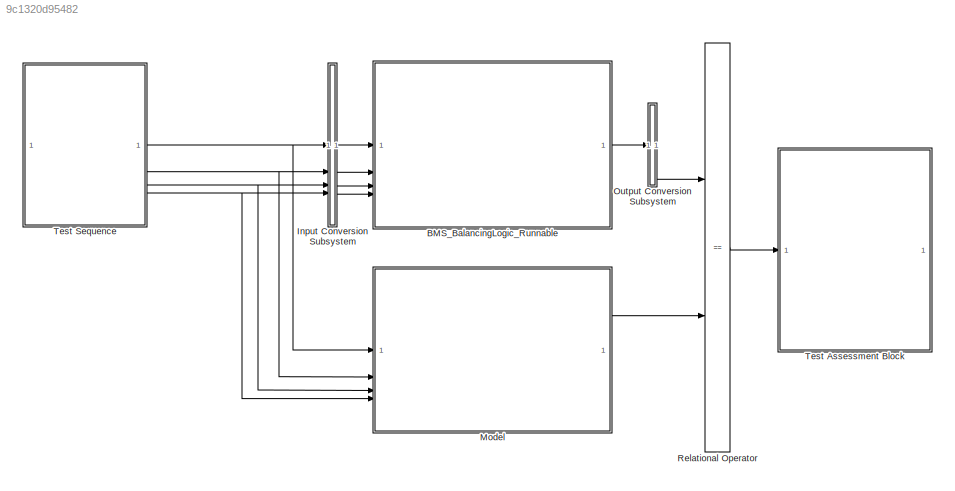
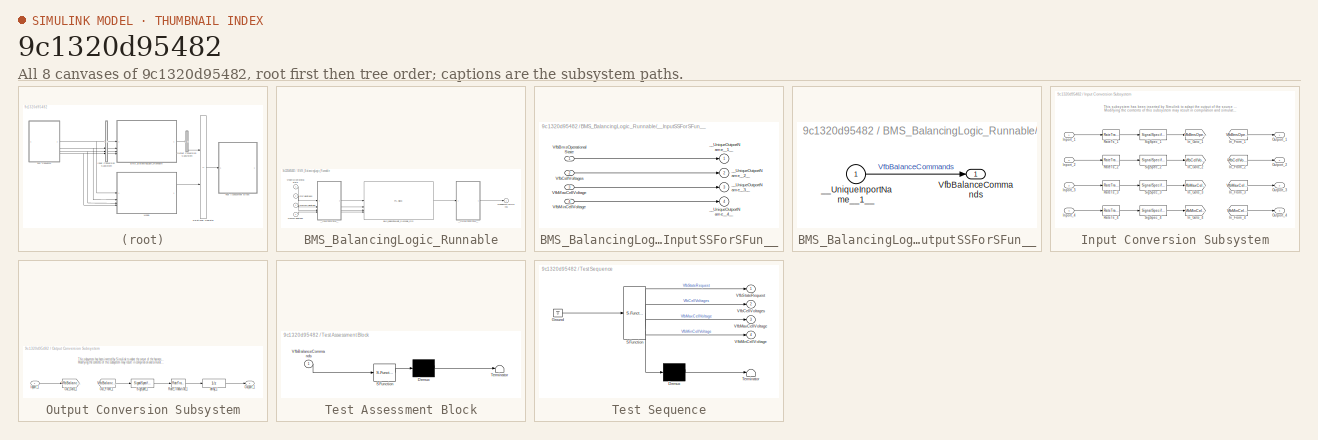
[diagram: thumbnail index - all 8 canvases of the model, root first then tree order]
MODEL slx_9c1320d95482
KIND model
CONFIG AbsTol = auto
CONFIG EnableMultiTasking = on
CONFIG FixedStep = auto
CONFIG MaxStep = auto
CONFIG MinStep = auto
CONFIG RelTol = 1e-3
CONFIG SampleTimeConstraint = Unconstrained
CONFIG SolverName = FixedStepDiscrete
CONFIG StartTime = 0.0
CONFIG StopTime = 10.0
WORKSPACE source: mxarray member
WORKSPACE BATT: object (value not decoded)
WORKSPACE Schedule: object (value not decoded)
BLOCK [SubSystem] BMS_BalancingLogic_Runnable
  DialogController = pil_create_dialog
  LoadFcn = try\n   if ~strcmp(rtw.pil.getPILVersion, '9.13 (R2022b)_15')\n      set_param(gcb, 'DialogController', '');\n      set_param(gcb, 'DialogControllerArgs', '');\n   end\ncatch e\n      set_param(gcb, 'DialogController', '');\n      set_param(gcb, 'DialogControllerArgs', '');\nend
  Tag = __SL_testing_harness_stub_
BLOCK [Reference] BMS_BalancingLogic_Runnable/BMS_BalancingLogic_Runnable_sfcn  REF=pil_lib/PIL Block
  SourceBlock = pil_lib/PIL Block
  SourceType = XILBlock
BLOCK [Outport] BMS_BalancingLogic_Runnable/VfbBalanceCommands
BLOCK [Inport] BMS_BalancingLogic_Runnable/VfbBmsOperationalState
  OutDataTypeStr = Enum: BMS_State_Enum
  PortDimensions = 1
BLOCK [Inport] BMS_BalancingLogic_Runnable/VfbCellVoltages
  Port = 2
BLOCK [Inport] BMS_BalancingLogic_Runnable/VfbMaxCellVoltage
  Port = 3
BLOCK [Inport] BMS_BalancingLogic_Runnable/VfbMinCellVoltage
  Port = 4
BLOCK [SubSystem] BMS_BalancingLogic_Runnable/__InputSSForSFun__
  PermitHierarchicalResolution = ExplicitOnly
BLOCK [Inport] BMS_BalancingLogic_Runnable/__InputSSForSFun__/VfbBmsOperationalState
  OutDataTypeStr = Enum: BMS_State_Enum
  PortDimensions = 1
BLOCK [Inport] BMS_BalancingLogic_Runnable/__InputSSForSFun__/VfbCellVoltages
  Port = 2
BLOCK [Inport] BMS_BalancingLogic_Runnable/__InputSSForSFun__/VfbMaxCellVoltage
  Port = 3
BLOCK [Inport] BMS_BalancingLogic_Runnable/__InputSSForSFun__/VfbMinCellVoltage
  Port = 4
BLOCK [Outport] BMS_BalancingLogic_Runnable/__InputSSForSFun__/__UniqueOutportName__1__
BLOCK [Outport] BMS_BalancingLogic_Runnable/__InputSSForSFun__/__UniqueOutportName__2__
  Port = 2
BLOCK [Outport] BMS_BalancingLogic_Runnable/__InputSSForSFun__/__UniqueOutportName__3__
  Port = 3
BLOCK [Outport] BMS_BalancingLogic_Runnable/__InputSSForSFun__/__UniqueOutportName__4__
  Port = 4
BLOCK [SubSystem] BMS_BalancingLogic_Runnable/__OutputSSForSFun__
  PermitHierarchicalResolution = ExplicitOnly
BLOCK [Outport] BMS_BalancingLogic_Runnable/__OutputSSForSFun__/VfbBalanceCommands
BLOCK [Inport] BMS_BalancingLogic_Runnable/__OutputSSForSFun__/__UniqueInportName__1__
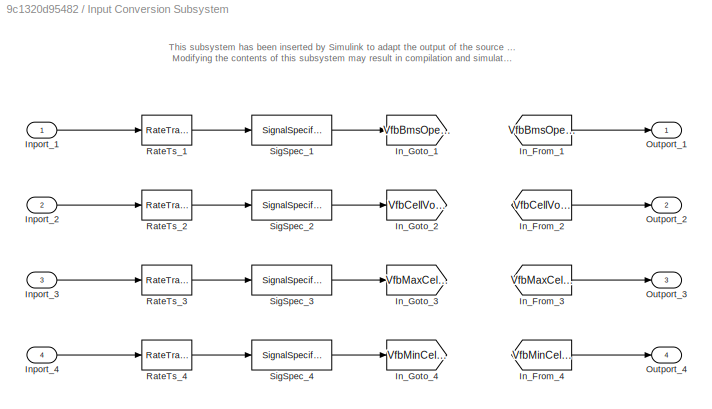
BLOCK [SubSystem] Input Conversion Subsystem
  AttributesFormatString = %<Description>
  Description = Signal spec.\nand routing
  Permissions = ReadOnly
  PermitHierarchicalResolution = ExplicitOnly
  Tag = __SLT_ICS__
  TreatAsGroupedWhenPropagatingVariantConditions = off
  UserDataPersistent = on
BLOCK [From] Input Conversion Subsystem/In_From_1
  GotoTag = VfbBmsOperationalState_A
  TagVisibility = global
BLOCK [From] Input Conversion Subsystem/In_From_2
  GotoTag = VfbCellVoltages_A
  TagVisibility = global
BLOCK [From] Input Conversion Subsystem/In_From_3
  GotoTag = VfbMaxCellVoltage_A
  TagVisibility = global
BLOCK [From] Input Conversion Subsystem/In_From_4
  GotoTag = VfbMinCellVoltage_A
  TagVisibility = global
BLOCK [Goto] Input Conversion Subsystem/In_Goto_1
  GotoTag = VfbBmsOperationalState_A
  TagVisibility = global
BLOCK [Goto] Input Conversion Subsystem/In_Goto_2
  GotoTag = VfbCellVoltages_A
  TagVisibility = global
BLOCK [Goto] Input Conversion Subsystem/In_Goto_3
  GotoTag = VfbMaxCellVoltage_A
  TagVisibility = global
BLOCK [Goto] Input Conversion Subsystem/In_Goto_4
  GotoTag = VfbMinCellVoltage_A
  TagVisibility = global
BLOCK [Inport] Input Conversion Subsystem/Inport_1
BLOCK [Inport] Input Conversion Subsystem/Inport_2
  Port = 2
BLOCK [Inport] Input Conversion Subsystem/Inport_3
  Port = 3
BLOCK [Inport] Input Conversion Subsystem/Inport_4
  Port = 4
BLOCK [Outport] Input Conversion Subsystem/Outport_1
BLOCK [Outport] Input Conversion Subsystem/Outport_2
  Port = 2
BLOCK [Outport] Input Conversion Subsystem/Outport_3
  Port = 3
BLOCK [Outport] Input Conversion Subsystem/Outport_4
  Port = 4
BLOCK [RateTransition] Input Conversion Subsystem/RateTs_1
  InitialCondition = BMS_State_Enum.BMS_Standby
  OutPortSampleTime = 0.25
BLOCK [RateTransition] Input Conversion Subsystem/RateTs_2
  OutPortSampleTime = 0.25
BLOCK [RateTransition] Input Conversion Subsystem/RateTs_3
  OutPortSampleTime = 0.25
BLOCK [RateTransition] Input Conversion Subsystem/RateTs_4
  OutPortSampleTime = 0.25
BLOCK [SignalSpecification] Input Conversion Subsystem/SigSpec_1
  Dimensions = [1]
  OutDataTypeStr = Enum: BMS_State_Enum
  SampleTime = 0.25
  SignalType = real
  VarSizeSig = No
BLOCK [SignalSpecification] Input Conversion Subsystem/SigSpec_2
  Dimensions = [3]
  OutDataTypeStr = single
  SampleTime = 0.25
  SignalType = real
  Unit = V
  VarSizeSig = No
BLOCK [SignalSpecification] Input Conversion Subsystem/SigSpec_3
  Dimensions = [1]
  OutDataTypeStr = single
  SampleTime = 0.25
  SignalType = real
  Unit = V
  VarSizeSig = No
BLOCK [SignalSpecification] Input Conversion Subsystem/SigSpec_4
  Dimensions = [1]
  OutDataTypeStr = single
  SampleTime = 0.25
  SignalType = real
  Unit = V
  VarSizeSig = No
BLOCK [ModelReference] Model
  ModelNameDialog = BMS_BalancingLogic_COM.slx
  ModelReferenceVersion = 1.53
BLOCK [SubSystem] Output Conversion Subsystem
  AttributesFormatString = %<Description>
  Description = Signal spec.\nand routing
  Permissions = ReadOnly
  PermitHierarchicalResolution = ExplicitOnly
  Tag = __SLT_OCS__
  TreatAsGroupedWhenPropagatingVariantConditions = off
  UserDataPersistent = on
BLOCK [Inport] Output Conversion Subsystem/Inport_1
BLOCK [From] Output Conversion Subsystem/Out_From_1
  GotoTag = VfbBalanceCommands_A
  TagVisibility = global
BLOCK [Goto] Output Conversion Subsystem/Out_Goto_1
  GotoTag = VfbBalanceCommands_A
  TagVisibility = global
BLOCK [Outport] Output Conversion Subsystem/Outport_1
BLOCK [RateTransition] Output Conversion Subsystem/Rate_Transition_1
  OutPortSampleTimeOpt = Inherit
BLOCK [SignalSpecification] Output Conversion Subsystem/SigSpec_1
  Dimensions = [3]
  OutDataTypeStr = boolean
  SampleTime = 0.25
  SignalType = real
  VarSizeSig = No
BLOCK [UnitDelay] Output Conversion Subsystem/delay_1
  SampleTime = -1
BLOCK [RelationalOperator] Relational Operator
  InputSameDT = off
  Operator = ==
  OutDataTypeStr = boolean
  RndMeth = Simplest
BLOCK [SubSystem] Test Assessment Block
  ErrorFcn = Stateflow.Translate.translate
  PermitHierarchicalResolution = ExplicitOnly
  SFBlockType = Test Sequence
  ShowPortLabels = none
  Tag = __SLT_ASMT__
  TreatAsAtomicUnit = on
BLOCK [Demux] Test Assessment Block/ Demux 
  Outputs = 1
BLOCK [S-Function] Test Assessment Block/ SFunction 
  EnableBusSupport = on
  FunctionName = sf_sfun
  PortCounts = [1 1]
  SFcnIsStateOwnerBlock = off
  SFunctionDeploymentMode = off
  Tag = Stateflow S-Function 7
BLOCK [Terminator] Test Assessment Block/ Terminator 
BLOCK [Inport] Test Assessment Block/VfbBalanceCommands
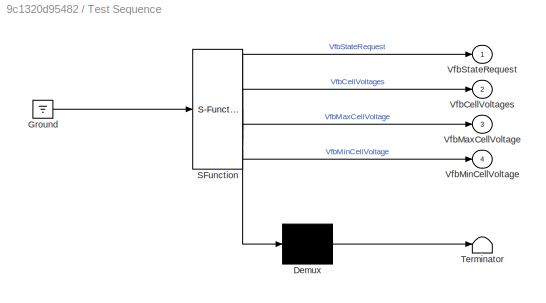
BLOCK [SubSystem] Test Sequence
  ErrorFcn = Stateflow.Translate.translate
  PermitHierarchicalResolution = ExplicitOnly
  SFBlockType = Test Sequence
  ShowPortLabels = none
  TreatAsAtomicUnit = on
BLOCK [Demux] Test Sequence/ Demux 
  Outputs = 1
BLOCK [Ground] Test Sequence/ Ground 
BLOCK [S-Function] Test Sequence/ SFunction 
  EnableBusSupport = on
  FunctionName = sf_sfun
  Parameters = 1
  PortCounts = [1 5]
  SFcnIsStateOwnerBlock = off
  SFunctionDeploymentMode = off
  Tag = Stateflow S-Function 4
BLOCK [Terminator] Test Sequence/ Terminator 
BLOCK [Outport] Test Sequence/VfbCellVoltages
  Port = 2
BLOCK [Outport] Test Sequence/VfbMaxCellVoltage
  Port = 3
BLOCK [Outport] Test Sequence/VfbMinCellVoltage
  Port = 4
BLOCK [Outport] Test Sequence/VfbStateRequest
ANNOTATION Input Conversion Subsystem: This subsystem has been inserted by Simulink to adapt the output of the source blocks to the interface required by the harnessed component. Modifying the contents of this subsystem may result in compilation and simulation failure.
ANNOTATION Output Conversion Subsystem: This subsystem has been inserted by Simulink to adapt the output of the harnessed component to the interface required by the sink blocks. Modifying the contents of this subsystem may result in compilation and simulation failure.
LINE BMS_BalancingLogic_Runnable/__InputSSForSFun__/VfbBmsOperationalState:1 -> BMS_BalancingLogic_Runnable/__InputSSForSFun__/__UniqueOutportName__1__:1
LINE BMS_BalancingLogic_Runnable/__InputSSForSFun__/VfbCellVoltages:1 -> BMS_BalancingLogic_Runnable/__InputSSForSFun__/__UniqueOutportName__2__:1
LINE BMS_BalancingLogic_Runnable/__InputSSForSFun__/VfbMaxCellVoltage:1 -> BMS_BalancingLogic_Runnable/__InputSSForSFun__/__UniqueOutportName__3__:1
LINE BMS_BalancingLogic_Runnable/__InputSSForSFun__/VfbMinCellVoltage:1 -> BMS_BalancingLogic_Runnable/__InputSSForSFun__/__UniqueOutportName__4__:1
LINE BMS_BalancingLogic_Runnable/__OutputSSForSFun__/__UniqueInportName__1__:1 -> BMS_BalancingLogic_Runnable/__OutputSSForSFun__/VfbBalanceCommands:1
LINE BMS_BalancingLogic_Runnable:1 -> Output Conversion Subsystem:1
LINE Input Conversion Subsystem/In_From_1:1 -> Input Conversion Subsystem/Outport_1:1
LINE Input Conversion Subsystem/In_From_2:1 -> Input Conversion Subsystem/Outport_2:1
LINE Input Conversion Subsystem/In_From_3:1 -> Input Conversion Subsystem/Outport_3:1
LINE Input Conversion Subsystem/In_From_4:1 -> Input Conversion Subsystem/Outport_4:1
LINE Input Conversion Subsystem/Inport_1:1 -> Input Conversion Subsystem/RateTs_1:1
LINE Input Conversion Subsystem/Inport_2:1 -> Input Conversion Subsystem/RateTs_2:1
LINE Input Conversion Subsystem/Inport_3:1 -> Input Conversion Subsystem/RateTs_3:1
LINE Input Conversion Subsystem/Inport_4:1 -> Input Conversion Subsystem/RateTs_4:1
LINE Input Conversion Subsystem/RateTs_1:1 -> Input Conversion Subsystem/SigSpec_1:1
LINE Input Conversion Subsystem/RateTs_2:1 -> Input Conversion Subsystem/SigSpec_2:1
LINE Input Conversion Subsystem/RateTs_3:1 -> Input Conversion Subsystem/SigSpec_3:1
LINE Input Conversion Subsystem/RateTs_4:1 -> Input Conversion Subsystem/SigSpec_4:1
LINE Input Conversion Subsystem/SigSpec_1:1 -> Input Conversion Subsystem/In_Goto_1:1
LINE Input Conversion Subsystem/SigSpec_2:1 -> Input Conversion Subsystem/In_Goto_2:1
LINE Input Conversion Subsystem/SigSpec_3:1 -> Input Conversion Subsystem/In_Goto_3:1
LINE Input Conversion Subsystem/SigSpec_4:1 -> Input Conversion Subsystem/In_Goto_4:1
LINE Input Conversion Subsystem:1 -> BMS_BalancingLogic_Runnable:1
LINE Input Conversion Subsystem:2 -> BMS_BalancingLogic_Runnable:2
LINE Input Conversion Subsystem:3 -> BMS_BalancingLogic_Runnable:3
LINE Input Conversion Subsystem:4 -> BMS_BalancingLogic_Runnable:4
LINE Model:1 -> Relational Operator:2
LINE Output Conversion Subsystem/Inport_1:1 -> Output Conversion Subsystem/Out_Goto_1:1
LINE Output Conversion Subsystem/Out_From_1:1 -> Output Conversion Subsystem/SigSpec_1:1
LINE Output Conversion Subsystem/Rate_Transition_1:1 -> Output Conversion Subsystem/delay_1:1
LINE Output Conversion Subsystem/SigSpec_1:1 -> Output Conversion Subsystem/Rate_Transition_1:1
LINE Output Conversion Subsystem/delay_1:1 -> Output Conversion Subsystem/Outport_1:1
LINE Output Conversion Subsystem:1 -> Relational Operator:1
LINE Relational Operator:1 -> Test Assessment Block:1
NET Test Sequence:1 -> Input Conversion Subsystem:1, Model:1
NET Test Sequence:2 -> Input Conversion Subsystem:2, Model:2
NET Test Sequence:3 -> Input Conversion Subsystem:3, Model:3
NET Test Sequence:4 -> Input Conversion Subsystem:4, Model:4
note: NET lines group one-source signal fan-out (src -> all destinations, sorted); 1:1 wires keep LINE
CHART Test Sequence states=21 transitions=22
  STATE_LABEL 'Dynamic'
  STATE_LABEL 'Run\n\nVfbStateRequest = BMS_State_Enum.BMS_Balancing;\nVfbCellVoltages = single(3.7 * ones(3, 1));\nVfbMaxCellVoltage = single(3.7);\nVfbMinCellVoltage  = single(3.7);'
  STATE_LABEL "S1\n\nVfbStateRequest = BMS_State_Enum.BMS_Balancing;\nVfbCellVoltages = single([3.725, 3.700, 3.700]');\nVfbMaxCellVoltage = single(3.725);\nVfbMinCellVoltage  = single(3.700);"
  STATE_LABEL 'S2\n\nVfbStateRequest = BMS_State_Enum.BMS_Balancing;\nVfbCellVoltages = single(3.7 * ones(3, 1));\nVfbMaxCellVoltage = single(3.7);\nVfbMinCellVoltage  = single(3.7);'
  STATE_LABEL "S3\n\nVfbStateRequest = BMS_State_Enum.BMS_Balancing;\nVfbCellVoltages = single([3.725, 3.700, 3.700]');\nVfbMaxCellVoltage = single(3.725);\nVfbMinCellVoltage  = single(3.700);"
  STATE_LABEL "S4\n\nVfbStateRequest = BMS_State_Enum.BMS_Driving;\nVfbCellVoltages = single([3.725, 3.700, 3.700]');\nVfbMaxCellVoltage = single(3.725);\nVfbMinCellVoltage  = single(3.700);"
  STATE_LABEL "S5\n\nVfbStateRequest = BMS_State_Enum.BMS_Balancing;\nVfbCellVoltages = single([3.725, 3.700, 3.700]');\nVfbMaxCellVoltage = single(3.725);\nVfbMinCellVoltage  = single(3.700);"
  STATE_LABEL "S6\n\nVfbStateRequest = BMS_State_Enum.BMS_Fault;\nVfbCellVoltages = single([3.725, 3.700, 3.700]');\nVfbMaxCellVoltage = single(3.725);\nVfbMinCellVoltage  = single(3.700);"
  STATE_LABEL "S7\n\nVfbStateRequest = BMS_State_Enum.BMS_Standby;\nVfbCellVoltages = single([3.725, 3.700, 3.700]');\nVfbMaxCellVoltage = single(3.725);\nVfbMinCellVoltage  = single(3.700);"
  STATE_LABEL "S8\n\nVfbStateRequest = BMS_State_Enum.BMS_Balancing;\nVfbCellVoltages = single([3.720, 3.700, 3.700]');\nVfbMaxCellVoltage = single(3.720);\nVfbMinCellVoltage  = single(3.700);"
  STATE_LABEL "S9\n\nVfbStateRequest = BMS_State_Enum.BMS_Standby;\nVfbCellVoltages = single([3.725, 3.700, 3.700]');\nVfbMaxCellVoltage = single(3.725);\nVfbMinCellVoltage  = single(3.700);"
  STATE_LABEL "S10\n\nVfbStateRequest = BMS_State_Enum.BMS_Standby;\nVfbCellVoltages = single([3.710, 3.700, 3.700]');\nVfbMaxCellVoltage = single(3.710);\nVfbMinCellVoltage  = single(3.700);"
  STATE_LABEL 'S11\n\nVfbStateRequest = BMS_State_Enum.BMS_Standby;\nVfbCellVoltages = single(3.7 * ones(3, 1));\nVfbMaxCellVoltage = single(3.7);\nVfbMinCellVoltage  = single(3.7);'
  STATE_LABEL 'S12\n\n'
  STATE_LABEL "end\n\ncoder.extrinsic('set_param');\nset_param(bdroot, 'SimulationCommand', 'stop');"
  STATE_LABEL '[\nafter(1, sec)\n]'
  STATE_LABEL '[\nafter(4.25, sec)\n]'
  STATE_LABEL '[\nafter(9.75, sec)\n]'
  STATE_LABEL '[\nafter(1, sec)\n]'
  STATE_LABEL '[\nafter(1, sec)\n]'
  STATE_LABEL '[\nafter(5, sec)\n]'
  STATE_LABEL '[\nafter(1, sec)\n]'
  STATE_LABEL '[\nafter(4.75, sec)\n]'
  STATE_LABEL '[\nafter(1.25, sec)\n]'
  STATE_LABEL '[\nafter(10, sec)\n]'
  STATE_LABEL '[\nafter(5, sec)\n]'
  STATE_LABEL '[\nafter(10, sec)\n]'
  STATE_LABEL '[\nafter(5, sec)\n]'
  STATE_LABEL 'Run\n\nVfbStateRequest = BMS_State_Enum.BMS_Balancing;\nVfbCellVoltages = single(3.7 * ones(3, 1));\nVfbMaxCellVoltage = single(3.7);\nVfbMinCellVoltage  = single(3.7);'
  STATE_LABEL "S1\n\nVfbStateRequest = BMS_State_Enum.BMS_Balancing;\nVfbCellVoltages = single([3.725, 3.700, 3.700]');\nVfbMaxCellVoltage = single(3.725);\nVfbMinCellVoltage  = single(3.700);"
  STATE_LABEL 'S2\n\nVfbStateRequest = BMS_State_Enum.BMS_Balancing;\nVfbCellVoltages = single(3.7 * ones(3, 1));\nVfbMaxCellVoltage = single(3.7);\nVfbMinCellVoltage  = single(3.7);'
  STATE_LABEL "S3\n\nVfbStateRequest = BMS_State_Enum.BMS_Balancing;\nVfbCellVoltages = single([3.725, 3.700, 3.700]');\nVfbMaxCellVoltage = single(3.725);\nVfbMinCellVoltage  = single(3.700);"
  STATE_LABEL "S4\n\nVfbStateRequest = BMS_State_Enum.BMS_Driving;\nVfbCellVoltages = single([3.725, 3.700, 3.700]');\nVfbMaxCellVoltage = single(3.725);\nVfbMinCellVoltage  = single(3.700);"
  STATE_LABEL "S5\n\nVfbStateRequest = BMS_State_Enum.BMS_Balancing;\nVfbCellVoltages = single([3.725, 3.700, 3.700]');\nVfbMaxCellVoltage = single(3.725);\nVfbMinCellVoltage  = single(3.700);"
  STATE_LABEL "S6\n\nVfbStateRequest = BMS_State_Enum.BMS_Fault;\nVfbCellVoltages = single([3.725, 3.700, 3.700]');\nVfbMaxCellVoltage = single(3.725);\nVfbMinCellVoltage  = single(3.700);"
  STATE_LABEL "S7\n\nVfbStateRequest = BMS_State_Enum.BMS_Standby;\nVfbCellVoltages = single([3.725, 3.700, 3.700]');\nVfbMaxCellVoltage = single(3.725);\nVfbMinCellVoltage  = single(3.700);"
  STATE_LABEL "S8\n\nVfbStateRequest = BMS_State_Enum.BMS_Balancing;\nVfbCellVoltages = single([3.720, 3.700, 3.700]');\nVfbMaxCellVoltage = single(3.720);\nVfbMinCellVoltage  = single(3.700);"
  STATE_LABEL "S9\n\nVfbStateRequest = BMS_State_Enum.BMS_Standby;\nVfbCellVoltages = single([3.725, 3.700, 3.700]');\nVfbMaxCellVoltage = single(3.725);\nVfbMinCellVoltage  = single(3.700);"
  STATE_LABEL "S10\n\nVfbStateRequest = BMS_State_Enum.BMS_Standby;\nVfbCellVoltages = single([3.710, 3.700, 3.700]');\nVfbMaxCellVoltage = single(3.710);\nVfbMinCellVoltage  = single(3.700);"
  STATE_LABEL 'S11\n\nVfbStateRequest = BMS_State_Enum.BMS_Standby;\nVfbCellVoltages = single(3.7 * ones(3, 1));\nVfbMaxCellVoltage = single(3.7);\nVfbMinCellVoltage  = single(3.7);'
CHART Test Assessment Block states=3 transitions=10
  STATE_LABEL 'Run\n\n'
  STATE_LABEL 'step_1_1\nverify(all(VfbBalanceCommands == true));'
  STATE_LABEL 'step_1_2'
  STATE_LABEL '[t > 5.5\n]'
  STATE_LABEL '[~in(Run.step_1_1)]'
  STATE_LABEL '[~in(Run.step_1_2)]'
  STATE_LABEL 'step_1_1\nverify(all(VfbBalanceCommands == true));'
  STATE_LABEL 'step_1_2'
